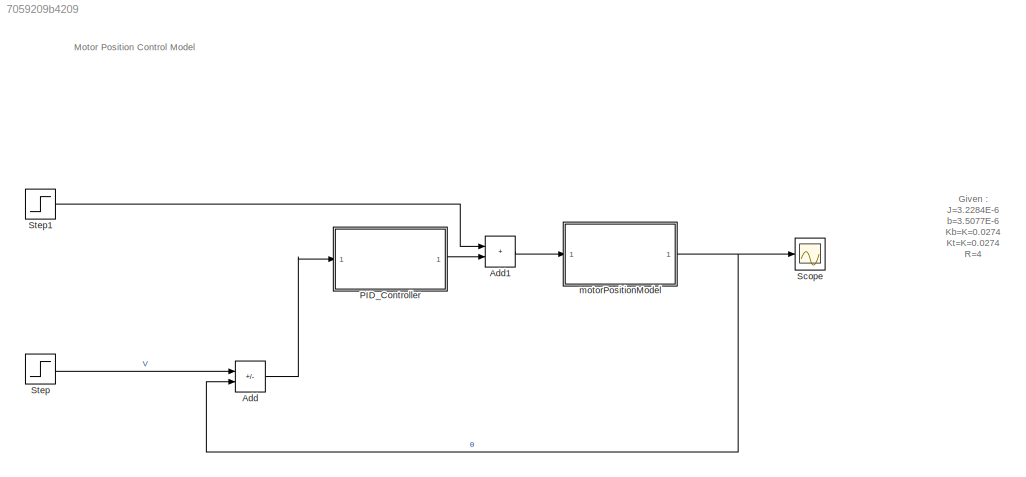
MODEL slx_7059209b4209
KIND model
CONFIG AbsTol = auto
CONFIG EnableMultiTasking = off
CONFIG FixedStep = auto
CONFIG InitFcn = J=3.2284e-6;\nb=3.5077e-6;\nK=0.0274;\nR=4;\nL=2.75e-6;\n\nKp=40.6275;\nKi=331.2128;\nKd=0.4934;
CONFIG MaxStep = auto
CONFIG MinStep = auto
CONFIG PostLoadFcn = J=3.2284e-6;\nb=3.5077e-6;\nK=0.0274;\nR=4;\nL=2.75e-6;\n\nKp=40.6275;\nKi=331.2128;\nKd=0.4934;
CONFIG RelTol = 1e-3
CONFIG SampleTimeConstraint = Unconstrained
CONFIG SolverName = ode45
CONFIG StartTime = 0.0
CONFIG StopTime = 0.08
BLOCK [Sum] Add
  IconShape = rectangular
  Inputs = +-
  Ports = [2, 1]
BLOCK [Sum] Add1
  IconShape = rectangular
  Ports = [2, 1]
BLOCK [ModelReference] PID_Controller
  ModelNameDialog = PID_Controller0
  ModelReferenceVersion = 1.7
  Ports = [1, 1]
BLOCK [Scope] Scope
  Floating = off
  NumInputPorts = 1
  Ports = [1]
  ScopeSpecificationString = Simulink.scopes.TimeScopeBlockCfg('CurrentConfiguration', extmgr.ConfigurationSet(extmgr.Configuration('Core','General UI',true),extmgr.Configuration('Core','Source UI',true),extmgr.Configuration('Sources','WiredSimulink',true),extmgr.Configuration('Visuals','Time Domain',true,'SerializedDisplays',{struct('MinYLimReal','-0.13429','MaxYLimReal','1.20864','YLabelReal','','MinYLimMag','0.00000','MaxY...<+1398ch>
BLOCK [Step] Step
  SampleTime = 0
  Time = 0
BLOCK [Step] Step1
  SampleTime = 0
  Time = 0.03
BLOCK [ModelReference] motorPositionModel
  ModelNameDialog = motorPositionModel
  ModelReferenceVersion = 1.4
  Ports = [1, 1]
ANNOTATION (root): Motor Position Control Model
ANNOTATION (root): Given : J=3.2284E-6 b=3.5077E-6 Kb=K=0.0274 Kt=K=0.0274 R=4 L=2.75E-6 Selected : Kp=40.6275 Ki=331.2128 Kd=0.4934
LINE Add1:1 -> motorPositionModel:1
LINE Add:1 -> PID_Controller:1
LINE PID_Controller:1 -> Add1:2
LINE Step1:1 -> Add1:1
LINE Step:1 -> Add:1
NET motorPositionModel:1 -> Add:2, Scope:1
note: NET lines group one-source signal fan-out (src -> all destinations, sorted); 1:1 wires keep LINE
